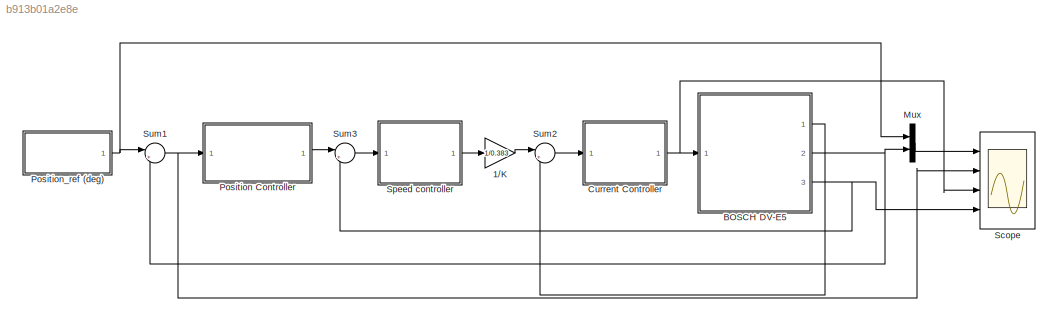
MODEL slx_b913b01a2e8e
KIND model
CONFIG AbsTol = auto
CONFIG EnableMultiTasking = off
CONFIG FixedStep = auto
CONFIG MaxStep = auto
CONFIG MinStep = auto
CONFIG RelTol = 1e-3
CONFIG SampleTimeConstraint = Unconstrained
CONFIG Solver = VariableStepAuto
CONFIG SolverName = VariableStepAuto
CONFIG StartTime = 0.0
CONFIG StopTime = 20
BLOCK [Gain] 1//K
  Gain = 1/0.383
  OutDataTypeStr = Inherit: Inherit via internal rule
  ParamDataTypeStr = Inherit: Inherit via internal rule
  SaturateOnIntegerOverflow = off
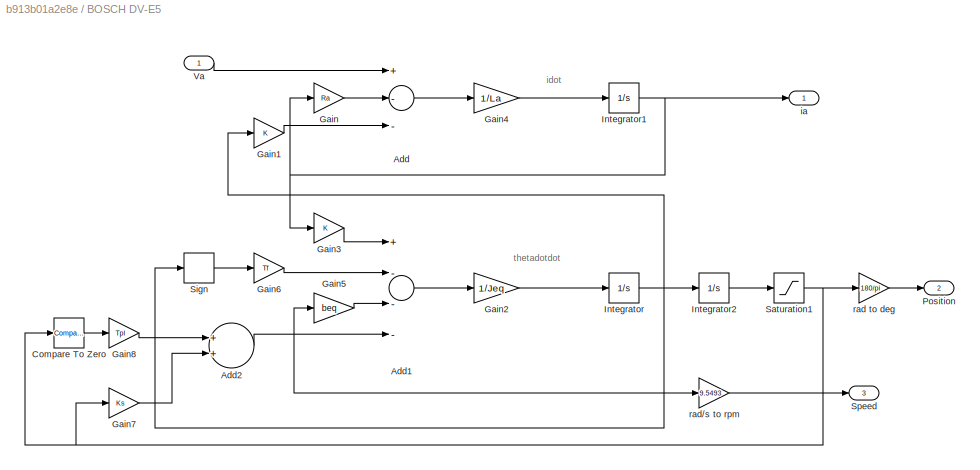
BLOCK [SubSystem] BOSCH DV-E5
  Ports = [1, 3]
  RequestExecContextInheritance = off
  Variant = off
BLOCK [Sum] BOSCH DV-E5/Add
  InputSameDT = off
  Inputs = +--
  OutDataTypeStr = Inherit: Inherit via internal rule
  Ports = [3, 1]
  SaturateOnIntegerOverflow = off
BLOCK [Sum] BOSCH DV-E5/Add1
  InputSameDT = off
  Inputs = +---
  OutDataTypeStr = Inherit: Inherit via internal rule
  Ports = [4, 1]
  SaturateOnIntegerOverflow = off
BLOCK [Sum] BOSCH DV-E5/Add2
  InputSameDT = off
  OutDataTypeStr = Inherit: Inherit via internal rule
  Ports = [2, 1]
  SaturateOnIntegerOverflow = off
BLOCK [Reference] BOSCH DV-E5/Compare To Zero  REF=simulink/Logic and Bit
Operations/Compare
To Zero
  Ports = [1, 1]
  SourceBlock = simulink/Logic and Bit\nOperations/Compare\nTo Zero
  SourceType = Compare To Zero
BLOCK [Gain] BOSCH DV-E5/Gain
  Gain = Ra
  OutDataTypeStr = Inherit: Inherit via internal rule
  ParamDataTypeStr = Inherit: Inherit via internal rule
  SaturateOnIntegerOverflow = off
BLOCK [Gain] BOSCH DV-E5/Gain1
  Gain = K
  OutDataTypeStr = Inherit: Inherit via internal rule
  ParamDataTypeStr = Inherit: Inherit via internal rule
  SaturateOnIntegerOverflow = off
BLOCK [Gain] BOSCH DV-E5/Gain2
  Gain = 1/Jeq
  OutDataTypeStr = Inherit: Inherit via internal rule
  ParamDataTypeStr = Inherit: Inherit via internal rule
  SaturateOnIntegerOverflow = off
BLOCK [Gain] BOSCH DV-E5/Gain3
  Gain = K
  OutDataTypeStr = Inherit: Inherit via internal rule
  ParamDataTypeStr = Inherit: Inherit via internal rule
  SaturateOnIntegerOverflow = off
BLOCK [Gain] BOSCH DV-E5/Gain4
  Gain = 1/La
  OutDataTypeStr = Inherit: Inherit via internal rule
  ParamDataTypeStr = Inherit: Inherit via internal rule
  SaturateOnIntegerOverflow = off
BLOCK [Gain] BOSCH DV-E5/Gain5
  Gain = beq
  OutDataTypeStr = Inherit: Inherit via internal rule
  ParamDataTypeStr = Inherit: Inherit via internal rule
  SaturateOnIntegerOverflow = off
BLOCK [Gain] BOSCH DV-E5/Gain6
  Gain = Tf
  OutDataTypeStr = Inherit: Inherit via internal rule
  ParamDataTypeStr = Inherit: Inherit via internal rule
  SaturateOnIntegerOverflow = off
BLOCK [Gain] BOSCH DV-E5/Gain7
  Gain = Ks
  OutDataTypeStr = Inherit: Inherit via internal rule
  ParamDataTypeStr = Inherit: Inherit via internal rule
  SaturateOnIntegerOverflow = off
BLOCK [Gain] BOSCH DV-E5/Gain8
  Gain = Tpl
  OutDataTypeStr = Inherit: Inherit via internal rule
  ParamDataTypeStr = Inherit: Inherit via internal rule
  SaturateOnIntegerOverflow = off
BLOCK [Integrator] BOSCH DV-E5/Integrator
  Ports = [1, 1]
BLOCK [Integrator] BOSCH DV-E5/Integrator1
  Ports = [1, 1]
BLOCK [Integrator] BOSCH DV-E5/Integrator2
  Ports = [1, 1]
BLOCK [Outport] BOSCH DV-E5/Position
  IconDisplay = Port number
  Port = 2
BLOCK [Saturate] BOSCH DV-E5/Saturation1
  InputPortMap = u0
  LowerLimit = 0
  Ports = [1, 1]
  UpperLimit = pi/2
BLOCK [Signum] BOSCH DV-E5/Sign
BLOCK [Outport] BOSCH DV-E5/Speed 
  IconDisplay = Port number
  Port = 3
BLOCK [Inport] BOSCH DV-E5/Va 
  IconDisplay = Port number
BLOCK [Outport] BOSCH DV-E5/ia
  IconDisplay = Port number
BLOCK [Gain] BOSCH DV-E5/rad to deg
  Gain = 180/pi
  OutDataTypeStr = Inherit: Inherit via internal rule
  ParamDataTypeStr = Inherit: Inherit via internal rule
  SaturateOnIntegerOverflow = off
BLOCK [Gain] BOSCH DV-E5/rad//s to rpm
  Gain = 9.5493
  OutDataTypeStr = Inherit: Inherit via internal rule
  ParamDataTypeStr = Inherit: Inherit via internal rule
  SaturateOnIntegerOverflow = off
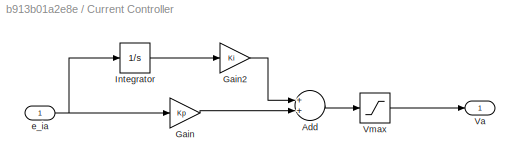
BLOCK [SubSystem] Current Controller
  Ports = [1, 1]
  RequestExecContextInheritance = off
  Variant = off
BLOCK [Sum] Current Controller/Add
  InputSameDT = off
  OutDataTypeStr = Inherit: Inherit via internal rule
  Ports = [2, 1]
  SaturateOnIntegerOverflow = off
BLOCK [Gain] Current Controller/Gain
  Gain = Kp
  OutDataTypeStr = Inherit: Inherit via internal rule
  ParamDataTypeStr = Inherit: Inherit via internal rule
  SaturateOnIntegerOverflow = off
BLOCK [Gain] Current Controller/Gain2
  Gain = Ki
  OutDataTypeStr = Inherit: Inherit via internal rule
  ParamDataTypeStr = Inherit: Inherit via internal rule
  SaturateOnIntegerOverflow = off
BLOCK [Integrator] Current Controller/Integrator
  Ports = [1, 1]
BLOCK [Outport] Current Controller/Va 
  IconDisplay = Port number
BLOCK [Saturate] Current Controller/Vmax
  InputPortMap = u0
  LowerLimit = -Vmax
  Ports = [1, 1]
  UpperLimit = Vmax
BLOCK [Inport] Current Controller/e_ia
  IconDisplay = Port number
BLOCK [Mux] Mux
  DisplayOption = bar
  Inputs = 2
  Ports = [2, 1]
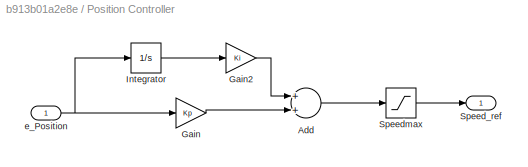
BLOCK [SubSystem] Position Controller
  Ports = [1, 1]
  RequestExecContextInheritance = off
  Variant = off
BLOCK [Sum] Position Controller/Add
  InputSameDT = off
  OutDataTypeStr = Inherit: Inherit via internal rule
  Ports = [2, 1]
  SaturateOnIntegerOverflow = off
BLOCK [Gain] Position Controller/Gain
  Gain = Kp
  OutDataTypeStr = Inherit: Inherit via internal rule
  ParamDataTypeStr = Inherit: Inherit via internal rule
  SaturateOnIntegerOverflow = off
BLOCK [Gain] Position Controller/Gain2
  Gain = Ki
  OutDataTypeStr = Inherit: Inherit via internal rule
  ParamDataTypeStr = Inherit: Inherit via internal rule
  SaturateOnIntegerOverflow = off
BLOCK [Integrator] Position Controller/Integrator
  Ports = [1, 1]
BLOCK [Outport] Position Controller/Speed_ref 
  IconDisplay = Port number
BLOCK [Saturate] Position Controller/Speedmax
  InputPortMap = u0
  LowerLimit = -Speedmax
  Ports = [1, 1]
  UpperLimit = Speedmax
BLOCK [Inport] Position Controller/e_Position
  IconDisplay = Port number
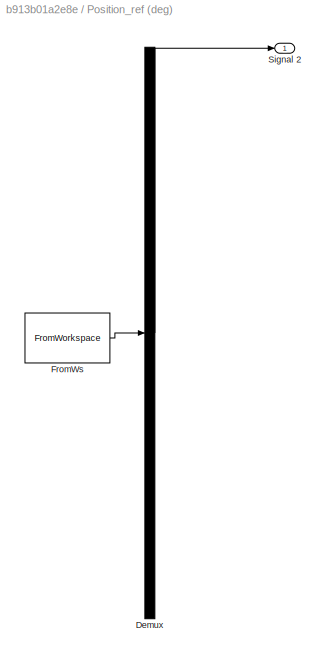
BLOCK [SubSystem] Position_ref (deg)
  ClipboardFcn = sigbuilder_block('clipboard');
  CloseFcn = sigbuilder_block('close');
  ContinueFcn = sigbuilder_block('continue');
  CopyFcn = sigbuilder_block('copy');
  DeleteFcn = sigbuilder_block('delete');
  LoadFcn = sigbuilder_block('load');
  MaskHideContents = on
  ModelCloseFcn = sigbuilder_block('modelClose');
  NameChangeFcn = sigbuilder_block('namechange');
  OpenFcn = sigbuilder_block('open',[196.5 100.5 550.5 359.25 ]);
  PauseFcn = sigbuilder_block('pause');
  Ports = [0, 1]
  PreSaveFcn = sigbuilder_block('preSave');
  RequestExecContextInheritance = off
  ShowPortLabels = none
  StartFcn = sigbuilder_block('start');
  StopFcn = sigbuilder_block('stop');
  Tag = STV Subsys
  Variant = off
BLOCK [Demux] Position_ref (deg)/Demux
  Outputs = 1
  Ports = [1, 1]
  Tag = STV Demux
BLOCK [FromWorkspace] Position_ref (deg)/FromWs
  SampleTime = 0
  Tag = STV FromWs
  VariableName = tuvar
  ZeroCross = on
BLOCK [Outport] Position_ref (deg)/Signal 2
  IconDisplay = Port number
  Tag = STV Outport
BLOCK [Scope] Scope
  NumInputPorts = 4
  Ports = [4]
  ScopeSpecificationString = Simulink.scopes.TimeScopeBlockCfg('CurrentConfiguration', extmgr.ConfigurationSet(extmgr.Configuration('Core','General UI',true,'FigureColor',[1 1 1]),extmgr.Configuration('Core','Source UI',true),extmgr.Configuration('Sources','WiredSimulink',true,'DataLoggingDecimateData',true,'DataLoggingDecimation','1'),extmgr.Configuration('Visuals','Time Domain',true,'SerializedDisplays',{struct('MinYLimReal...<+4393ch>
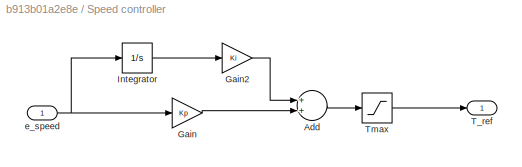
BLOCK [SubSystem] Speed controller
  Ports = [1, 1]
  RequestExecContextInheritance = off
  Variant = off
BLOCK [Sum] Speed controller/Add
  InputSameDT = off
  OutDataTypeStr = Inherit: Inherit via internal rule
  Ports = [2, 1]
  SaturateOnIntegerOverflow = off
BLOCK [Gain] Speed controller/Gain
  Gain = Kp
  OutDataTypeStr = Inherit: Inherit via internal rule
  ParamDataTypeStr = Inherit: Inherit via internal rule
  SaturateOnIntegerOverflow = off
BLOCK [Gain] Speed controller/Gain2
  Gain = Ki
  OutDataTypeStr = Inherit: Inherit via internal rule
  ParamDataTypeStr = Inherit: Inherit via internal rule
  SaturateOnIntegerOverflow = off
BLOCK [Integrator] Speed controller/Integrator
  Ports = [1, 1]
BLOCK [Outport] Speed controller/T_ref 
  IconDisplay = Port number
BLOCK [Saturate] Speed controller/Tmax
  InputPortMap = u0
  LowerLimit = -Tmax
  Ports = [1, 1]
  UpperLimit = Tmax
BLOCK [Inport] Speed controller/e_speed
  IconDisplay = Port number
BLOCK [Sum] Sum1
  IconShape = round
  InputSameDT = off
  Inputs = |+-
  OutDataTypeStr = Inherit: Inherit via internal rule
  Ports = [2, 1]
  SaturateOnIntegerOverflow = off
BLOCK [Sum] Sum2
  IconShape = round
  InputSameDT = off
  Inputs = |+-
  OutDataTypeStr = Inherit: Inherit via internal rule
  Ports = [2, 1]
  SaturateOnIntegerOverflow = off
BLOCK [Sum] Sum3
  IconShape = round
  InputSameDT = off
  Inputs = |+-
  OutDataTypeStr = Inherit: Inherit via internal rule
  Ports = [2, 1]
  SaturateOnIntegerOverflow = off
ANNOTATION BOSCH DV-E5: idot
ANNOTATION BOSCH DV-E5: thetadotdot
LINE 1//K:1 -> Sum2:1
LINE BOSCH DV-E5/Add1:1 -> BOSCH DV-E5/Gain2:1
LINE BOSCH DV-E5/Add2:1 -> BOSCH DV-E5/Add1:4
LINE BOSCH DV-E5/Add:1 -> BOSCH DV-E5/Gain4:1
LINE BOSCH DV-E5/Compare To Zero:1 -> BOSCH DV-E5/Gain8:1
LINE BOSCH DV-E5/Gain1:1 -> BOSCH DV-E5/Add:3
LINE BOSCH DV-E5/Gain2:1 -> BOSCH DV-E5/Integrator:1
LINE BOSCH DV-E5/Gain3:1 -> BOSCH DV-E5/Add1:1
LINE BOSCH DV-E5/Gain4:1 -> BOSCH DV-E5/Integrator1:1
LINE BOSCH DV-E5/Gain5:1 -> BOSCH DV-E5/Add1:3
LINE BOSCH DV-E5/Gain6:1 -> BOSCH DV-E5/Add1:2
LINE BOSCH DV-E5/Gain7:1 -> BOSCH DV-E5/Add2:2
LINE BOSCH DV-E5/Gain8:1 -> BOSCH DV-E5/Add2:1
LINE BOSCH DV-E5/Gain:1 -> BOSCH DV-E5/Add:2
NET BOSCH DV-E5/Integrator1:1 -> BOSCH DV-E5/Gain3:1, BOSCH DV-E5/Gain:1, BOSCH DV-E5/ia:1
LINE BOSCH DV-E5/Integrator2:1 -> BOSCH DV-E5/Saturation1:1
NET BOSCH DV-E5/Integrator:1 -> BOSCH DV-E5/Gain1:1, BOSCH DV-E5/Gain5:1, BOSCH DV-E5/Integrator2:1, BOSCH DV-E5/Sign:1, BOSCH DV-E5/rad//s to rpm:1
NET BOSCH DV-E5/Saturation1:1 -> BOSCH DV-E5/Compare To Zero:1, BOSCH DV-E5/Gain7:1, BOSCH DV-E5/rad to deg:1
LINE BOSCH DV-E5/Sign:1 -> BOSCH DV-E5/Gain6:1
LINE BOSCH DV-E5/Va :1 -> BOSCH DV-E5/Add:1
LINE BOSCH DV-E5/rad to deg:1 -> BOSCH DV-E5/Position:1
LINE BOSCH DV-E5/rad//s to rpm:1 -> BOSCH DV-E5/Speed :1
LINE BOSCH DV-E5:1 -> Sum2:2
NET BOSCH DV-E5:2 -> Mux:2, Sum1:2
NET BOSCH DV-E5:3 -> Scope:4, Sum3:2
LINE Current Controller/Add:1 -> Current Controller/Vmax:1
LINE Current Controller/Gain2:1 -> Current Controller/Add:1
LINE Current Controller/Gain:1 -> Current Controller/Add:2
LINE Current Controller/Integrator:1 -> Current Controller/Gain2:1
LINE Current Controller/Vmax:1 -> Current Controller/Va :1
NET Current Controller/e_ia:1 -> Current Controller/Gain:1, Current Controller/Integrator:1
NET Current Controller:1 -> BOSCH DV-E5:1, Scope:3
LINE Mux:1 -> Scope:1
LINE Position Controller/Add:1 -> Position Controller/Speedmax:1
LINE Position Controller/Gain2:1 -> Position Controller/Add:1
LINE Position Controller/Gain:1 -> Position Controller/Add:2
LINE Position Controller/Integrator:1 -> Position Controller/Gain2:1
LINE Position Controller/Speedmax:1 -> Position Controller/Speed_ref :1
NET Position Controller/e_Position:1 -> Position Controller/Gain:1, Position Controller/Integrator:1
LINE Position Controller:1 -> Sum3:1
NET Position_ref (deg):1 -> Mux:1, Sum1:1
LINE Speed controller/Add:1 -> Speed controller/Tmax:1
LINE Speed controller/Gain2:1 -> Speed controller/Add:1
LINE Speed controller/Gain:1 -> Speed controller/Add:2
LINE Speed controller/Integrator:1 -> Speed controller/Gain2:1
LINE Speed controller/Tmax:1 -> Speed controller/T_ref :1
NET Speed controller/e_speed:1 -> Speed controller/Gain:1, Speed controller/Integrator:1
LINE Speed controller:1 -> 1//K:1
NET Sum1:1 -> Position Controller:1, Scope:2
LINE Sum2:1 -> Current Controller:1
LINE Sum3:1 -> Speed controller:1
note: NET lines group one-source signal fan-out (src -> all destinations, sorted); 1:1 wires keep LINE
